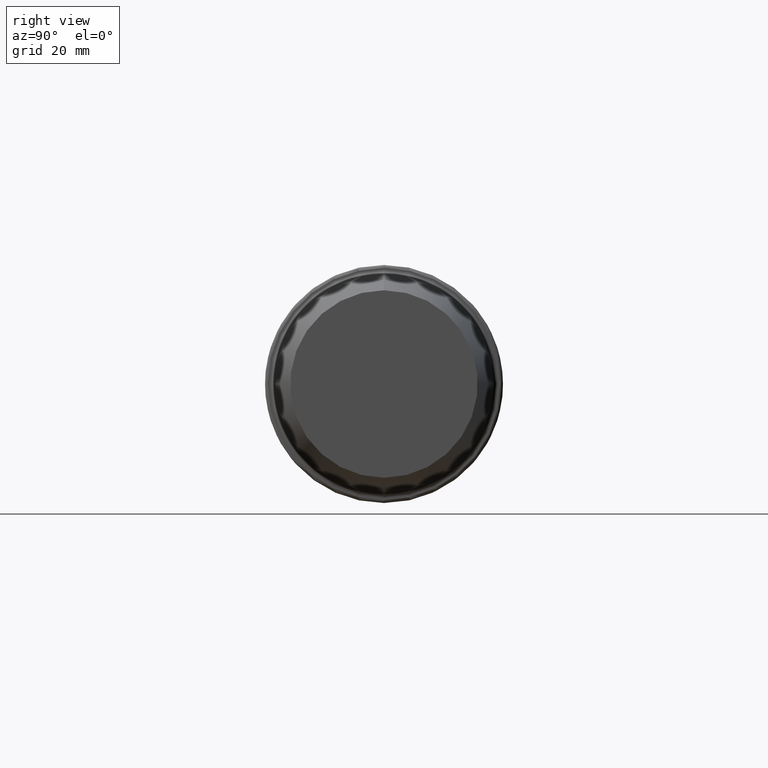
[diagram: clean part render]
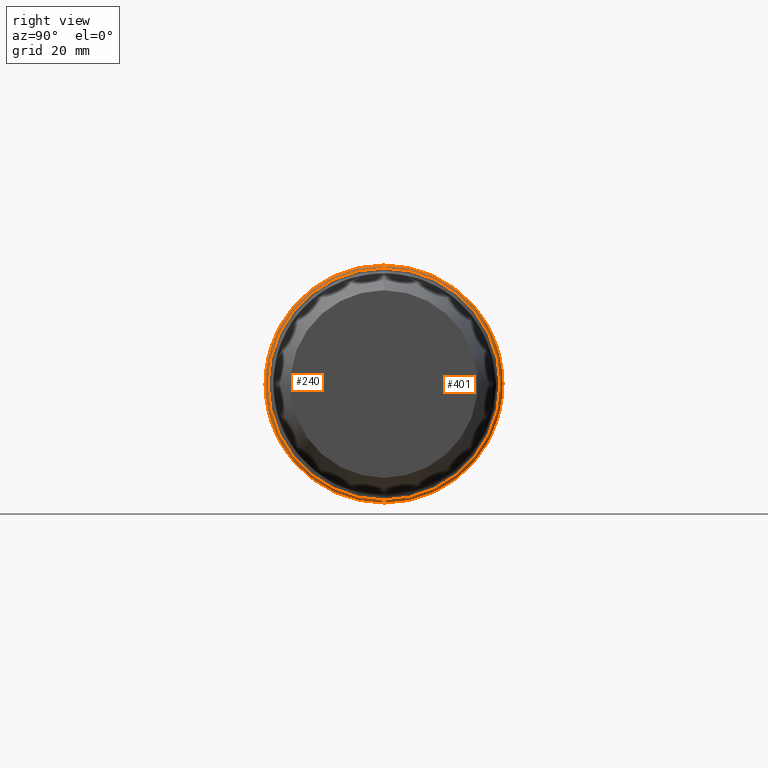
[diagram: same view with one multi-face feature highlighted, each face labeled with its STEP entity id]
A machine part, right view. The highlighted faces form ONE feature: a constant-radius fillet chain: 2 tangent blend faces with common blend radius 1 mm. The faces share edges in the B-rep.
Their STEP definitions:
[1] entity #401 (Torus):
#2 = AXIS2_PLACEMENT_3D ( 'NONE', #484, #34, #441 ) ;
#11 = ORIENTED_EDGE ( 'NONE', *, *, #91, .T. ) ;
#13 = FACE_OUTER_BOUND ( 'NONE', #455, .T. ) ;
#28 = ORIENTED_EDGE ( 'NONE', *, *, #150, .F. ) ;
#34 = DIRECTION ( 'NONE',  ( -1.000000000000000000, 0.000000000000000000, 0.000000000000000000 ) ) ;
#55 = AXIS2_PLACEMENT_3D ( 'NONE', #388, #470, #95 ) ;
#83 = DIRECTION ( 'NONE',  ( 0.000000000000000000, 0.000000000000000000, 1.000000000000000000 ) ) ;
#91 = EDGE_CURVE ( 'NONE', #178, #177, #496, .T. ) ;
#95 = DIRECTION ( 'NONE',  ( 0.000000000000000000, 0.000000000000000000, -1.000000000000000000 ) ) ;
#106 = AXIS2_PLACEMENT_3D ( 'NONE', #328, #335, #83 ) ;
#112 = CARTESIAN_POINT ( 'NONE',  ( 29.99999997209141611, 0.000000000000000000, 38.99249996488934045 ) ) ;
#150 = EDGE_CURVE ( 'NONE', #222, #177, #473, .T. ) ;
#176 = CARTESIAN_POINT ( 'NONE',  ( 28.99999997311141797, 0.000000000000000000, 0.000000000000000000 ) ) ;
#177 = VERTEX_POINT ( 'NONE', #368 ) ;
#178 = VERTEX_POINT ( 'NONE', #507 ) ;
#222 = VERTEX_POINT ( 'NONE', #465 ) ;
#263 = CIRCLE ( 'NONE', #55, 0.9999999989799973621 ) ;
#274 = EDGE_CURVE ( 'NONE', #500, #178, #338, .T. ) ;
#289 = AXIS2_PLACEMENT_3D ( 'NONE', #176, #303, #305 ) ;
#298 = ORIENTED_EDGE ( 'NONE', *, *, #274, .T. ) ;
#303 = DIRECTION ( 'NONE',  ( -1.000000000000000000, 0.000000000000000000, 0.000000000000000000 ) ) ;
#305 = DIRECTION ( 'NONE',  ( 0.000000000000000000, 0.000000000000000000, 1.000000000000000000 ) ) ;
#320 = AXIS2_PLACEMENT_3D ( 'NONE', #524, #322, #398 ) ;
#322 = DIRECTION ( 'NONE',  ( 0.000000000000000000, 1.000000000000000000, 1.224646799147353947E-16 ) ) ;
#328 = CARTESIAN_POINT ( 'NONE',  ( 29.99999997209141611, 0.000000000000000000, 0.000000000000000000 ) ) ;
#335 = DIRECTION ( 'NONE',  ( -1.000000000000000000, 0.000000000000000000, 0.000000000000000000 ) ) ;
#338 = CIRCLE ( 'NONE', #106, 38.99249996488934045 ) ;
#368 = CARTESIAN_POINT ( 'NONE',  ( 28.99999997311141797, 4.897668707065322260E-15, -39.99249996386929951 ) ) ;
#388 = CARTESIAN_POINT ( 'NONE',  ( 28.99999997311141797, 0.000000000000000000, 38.99249996488934045 ) ) ;
#391 = ORIENTED_EDGE ( 'NONE', *, *, #409, .F. ) ;
#398 = DIRECTION ( 'NONE',  ( 0.000000000000000000, -1.224646799147358384E-16, 1.000000000000000000 ) ) ;
#401 = ADVANCED_FACE ( 'NONE', ( #13 ), #419, .T. ) ;
#409 = EDGE_CURVE ( 'NONE', #500, #222, #263, .T. ) ;
#419 = TOROIDAL_SURFACE ( 'NONE', #289, 38.99249996488934045, 0.9999999989799999156 ) ;
#441 = DIRECTION ( 'NONE',  ( 0.000000000000000000, 0.000000000000000000, 1.000000000000000000 ) ) ;
#455 = EDGE_LOOP ( 'NONE', ( #298, #11, #28, #391 ) ) ;
#465 = CARTESIAN_POINT ( 'NONE',  ( 28.99999997311141797, 0.000000000000000000, 39.99249996386929951 ) ) ;
#470 = DIRECTION ( 'NONE',  ( 0.000000000000000000, -1.000000000000000000, 0.000000000000000000 ) ) ;
#473 = CIRCLE ( 'NONE', #2, 39.99249996386929951 ) ;
#484 = CARTESIAN_POINT ( 'NONE',  ( 28.99999997311141797, 0.000000000000000000, 0.000000000000000000 ) ) ;
#496 = CIRCLE ( 'NONE', #320, 0.9999999989799973621 ) ;
#500 = VERTEX_POINT ( 'NONE', #112 ) ;
#507 = CARTESIAN_POINT ( 'NONE',  ( 29.99999997209141611, 4.836436367170416693E-15, -38.99249996488934045 ) ) ;
#524 = CARTESIAN_POINT ( 'NONE',  ( 28.99999997311141797, 4.775204027275495348E-15, -38.99249996488934045 ) ) ;
[2] entity #240 (Torus):
#35 = EDGE_CURVE ( 'NONE', #178, #500, #387, .T. ) ;
#42 = CARTESIAN_POINT ( 'NONE',  ( 28.99999997311141797, 0.000000000000000000, 0.000000000000000000 ) ) ;
#55 = AXIS2_PLACEMENT_3D ( 'NONE', #388, #470, #95 ) ;
#71 = DIRECTION ( 'NONE',  ( 0.000000000000000000, 0.000000000000000000, 1.000000000000000000 ) ) ;
#91 = EDGE_CURVE ( 'NONE', #178, #177, #496, .T. ) ;
#95 = DIRECTION ( 'NONE',  ( 0.000000000000000000, 0.000000000000000000, -1.000000000000000000 ) ) ;
#112 = CARTESIAN_POINT ( 'NONE',  ( 29.99999997209141611, 0.000000000000000000, 38.99249996488934045 ) ) ;
#129 = EDGE_CURVE ( 'NONE', #177, #222, #394, .T. ) ;
#177 = VERTEX_POINT ( 'NONE', #368 ) ;
#178 = VERTEX_POINT ( 'NONE', #507 ) ;
#204 = DIRECTION ( 'NONE',  ( 0.000000000000000000, 0.000000000000000000, 1.000000000000000000 ) ) ;
#208 = ORIENTED_EDGE ( 'NONE', *, *, #91, .F. ) ;
#216 = ORIENTED_EDGE ( 'NONE', *, *, #129, .F. ) ;
#222 = VERTEX_POINT ( 'NONE', #465 ) ;
#231 = CARTESIAN_POINT ( 'NONE',  ( 29.99999997209141611, 0.000000000000000000, 0.000000000000000000 ) ) ;
#240 = ADVANCED_FACE ( 'NONE', ( #504 ), #347, .T. ) ;
#263 = CIRCLE ( 'NONE', #55, 0.9999999989799973621 ) ;
#297 = DIRECTION ( 'NONE',  ( -1.000000000000000000, 0.000000000000000000, 0.000000000000000000 ) ) ;
#300 = AXIS2_PLACEMENT_3D ( 'NONE', #42, #297, #204 ) ;
#307 = AXIS2_PLACEMENT_3D ( 'NONE', #357, #493, #71 ) ;
#310 = ORIENTED_EDGE ( 'NONE', *, *, #409, .T. ) ;
#317 = DIRECTION ( 'NONE',  ( -1.000000000000000000, 0.000000000000000000, 0.000000000000000000 ) ) ;
#319 = DIRECTION ( 'NONE',  ( 0.000000000000000000, 0.000000000000000000, 1.000000000000000000 ) ) ;
#320 = AXIS2_PLACEMENT_3D ( 'NONE', #524, #322, #398 ) ;
#322 = DIRECTION ( 'NONE',  ( 0.000000000000000000, 1.000000000000000000, 1.224646799147353947E-16 ) ) ;
#347 = TOROIDAL_SURFACE ( 'NONE', #300, 38.99249996488934045, 0.9999999989799999156 ) ;
#357 = CARTESIAN_POINT ( 'NONE',  ( 28.99999997311141797, 0.000000000000000000, 0.000000000000000000 ) ) ;
#361 = ORIENTED_EDGE ( 'NONE', *, *, #35, .T. ) ;
#368 = CARTESIAN_POINT ( 'NONE',  ( 28.99999997311141797, 4.897668707065322260E-15, -39.99249996386929951 ) ) ;
#387 = CIRCLE ( 'NONE', #426, 38.99249996488934045 ) ;
#388 = CARTESIAN_POINT ( 'NONE',  ( 28.99999997311141797, 0.000000000000000000, 38.99249996488934045 ) ) ;
#394 = CIRCLE ( 'NONE', #307, 39.99249996386929951 ) ;
#398 = DIRECTION ( 'NONE',  ( 0.000000000000000000, -1.224646799147358384E-16, 1.000000000000000000 ) ) ;
#409 = EDGE_CURVE ( 'NONE', #500, #222, #263, .T. ) ;
#426 = AXIS2_PLACEMENT_3D ( 'NONE', #231, #317, #319 ) ;
#439 = EDGE_LOOP ( 'NONE', ( #208, #361, #310, #216 ) ) ;
#465 = CARTESIAN_POINT ( 'NONE',  ( 28.99999997311141797, 0.000000000000000000, 39.99249996386929951 ) ) ;
#470 = DIRECTION ( 'NONE',  ( 0.000000000000000000, -1.000000000000000000, 0.000000000000000000 ) ) ;
#493 = DIRECTION ( 'NONE',  ( -1.000000000000000000, 0.000000000000000000, 0.000000000000000000 ) ) ;
#496 = CIRCLE ( 'NONE', #320, 0.9999999989799973621 ) ;
#500 = VERTEX_POINT ( 'NONE', #112 ) ;
#504 = FACE_OUTER_BOUND ( 'NONE', #439, .T. ) ;
#507 = CARTESIAN_POINT ( 'NONE',  ( 29.99999997209141611, 4.836436367170416693E-15, -38.99249996488934045 ) ) ;
#524 = CARTESIAN_POINT ( 'NONE',  ( 28.99999997311141797, 4.775204027275495348E-15, -38.99249996488934045 ) ) ;